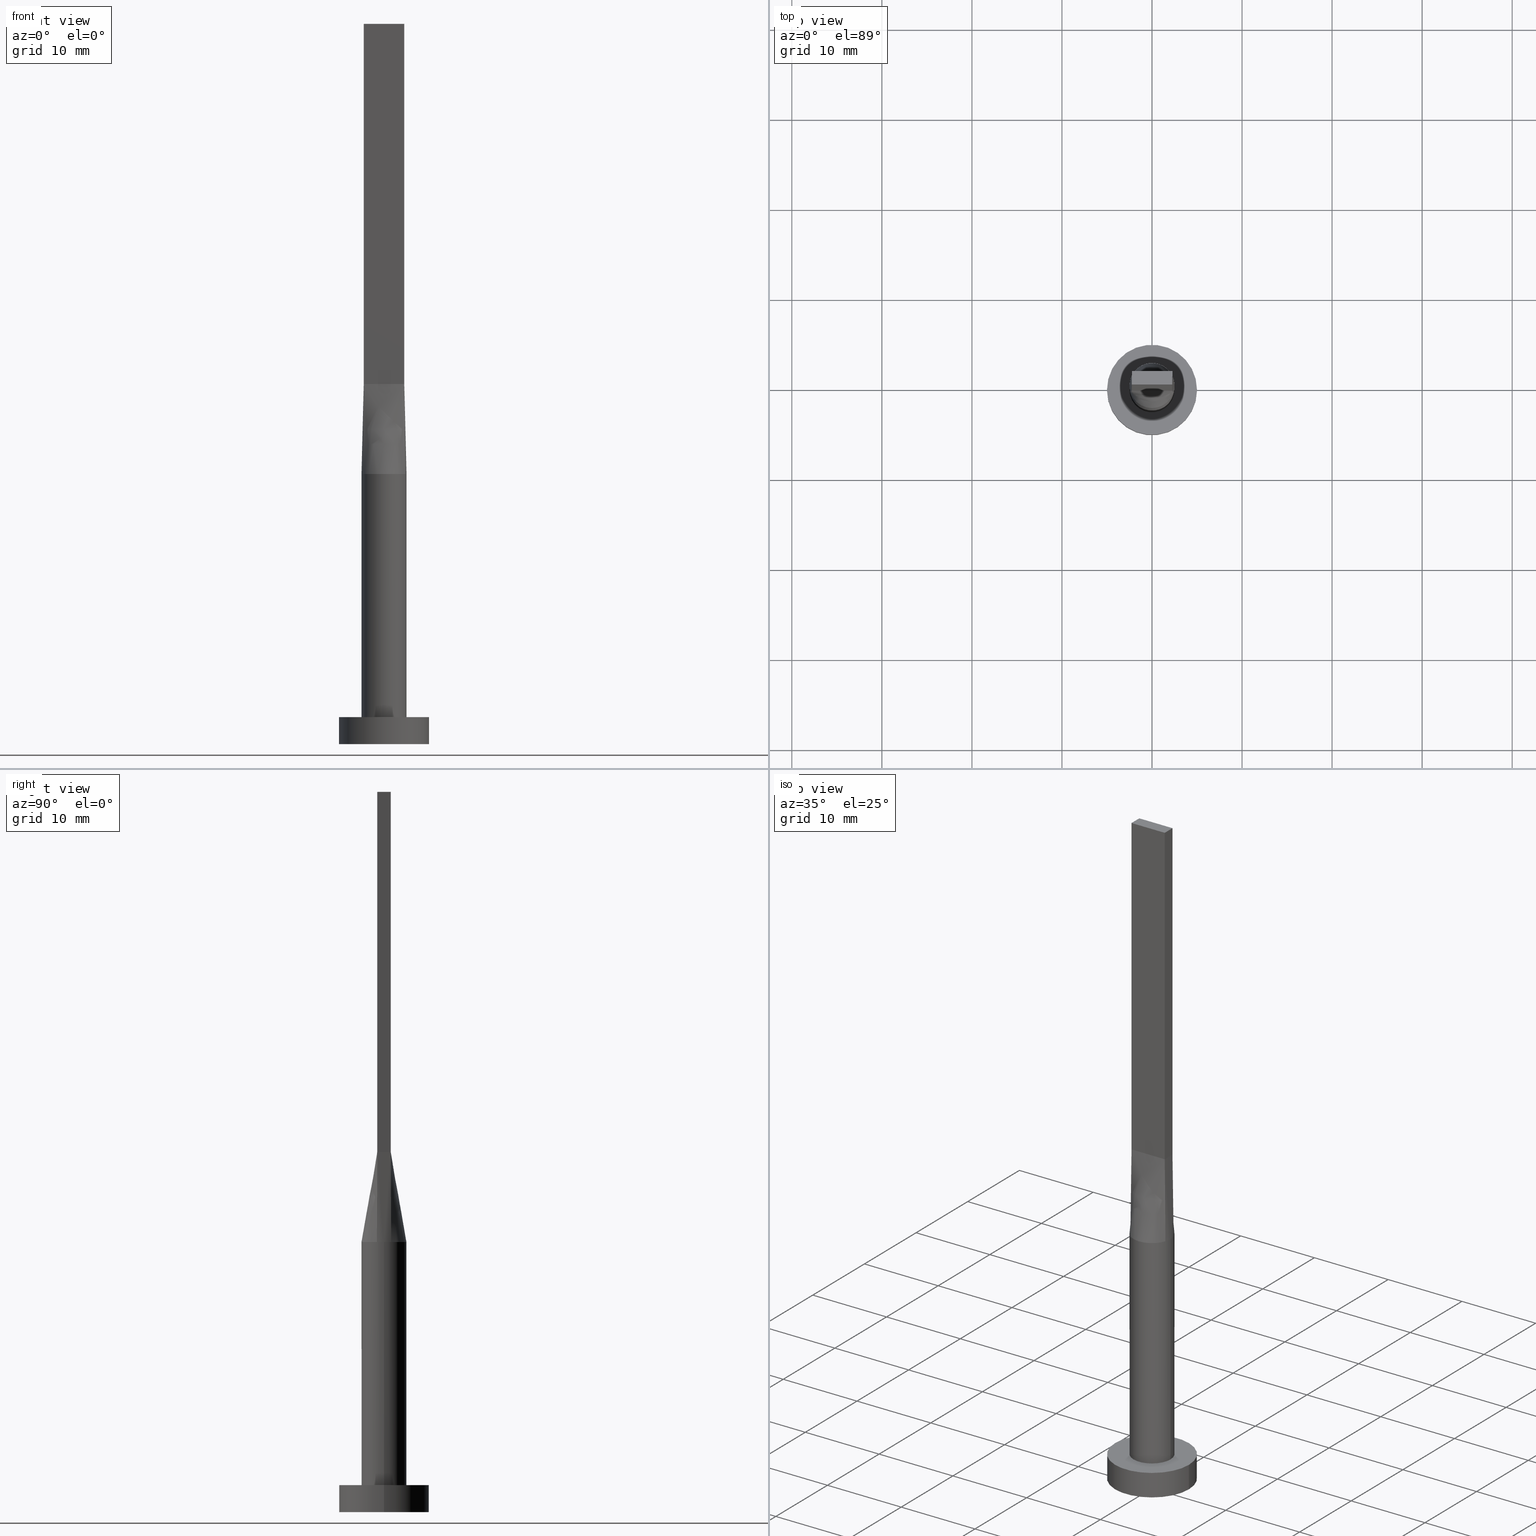
[diagram: canonical four-view strip — front | top / right | iso, engineering-drawing reading convention]
A machine part, canonical four-view strip (front | top / right | iso — engineering-drawing reading convention). The complete STEP part file that produces these views, byte-faithful:
ISO-10303-21;
HEADER;
FILE_DESCRIPTION (( 'STEP AP203' ),
    '1' );
FILE_NAME ('35fd.STEP',
    '2023-02-13T12:31:26',
    ( '' ),
    ( '' ),
    'SwSTEP 2.0',
    'SolidWorks 2019',
    '' );
FILE_SCHEMA (( 'CONFIG_CONTROL_DESIGN' ));
ENDSEC;

DATA;
#1 = CARTESIAN_POINT ( 'NONE',  ( 1.799471046981194977, 1.755719709239274007, 30.00000000000000355 ) ) ;
#2 = CC_DESIGN_DATE_AND_TIME_ASSIGNMENT ( #250, #252, ( #9 ) ) ;
#3 = CARTESIAN_POINT ( 'NONE',  ( 0.6000386972366480443, 2.444291348568451649, 29.99999999999999645 ) ) ;
#4 = CARTESIAN_POINT ( 'NONE',  ( -2.249999999999999556, 0.7500000000000002220, 80.00000000000000000 ) ) ;
#5 = ORIENTED_EDGE ( 'NONE', *, *, #502, .F. ) ;
#6 = AXIS2_PLACEMENT_3D ( 'NONE', #461, #67, #282 ) ;
#7 = CARTESIAN_POINT ( 'NONE',  ( -2.250000000000000000, -0.7499999999999995559, 80.00000000000000000 ) ) ;
#8 = DIRECTION ( 'NONE',  ( 0.000000000000000000, 0.000000000000000000, 1.000000000000000000 ) ) ;
#9 = PRODUCT_DEFINITION ( 'NEZN�M�', '', #287, #392 ) ;
#10 = DIRECTION ( 'NONE',  ( -1.000000000000000000, -2.891205793294678326E-16, 0.000000000000000000 ) ) ;
#11 = EDGE_LOOP ( 'NONE', ( #36, #361, #92, #124, #229, #525 ) ) ;
#12 = LINE ( 'NONE', #532, #496 ) ;
#13 = CARTESIAN_POINT ( 'NONE',  ( 0.000000000000000000, 0.000000000000000000, 30.00000000000000000 ) ) ;
#14 = B_SPLINE_SURFACE_WITH_KNOTS ( 'NONE', 3, 1, ( 
 ( #506, #117 ),
 ( #562, #165 ),
 ( #283, #162 ),
 ( #110, #293 ),
 ( #466, #286 ),
 ( #17, #20 ) ),
 .UNSPECIFIED., .F., .F., .F.,
 ( 4, 2, 4 ),
 ( 2, 2 ),
 ( 0.000000000000000000, 0.5000000000000000000, 1.000000000000000000 ),
 ( 0.000000000000000000, 1.000000000000000000 ),
 .UNSPECIFIED. ) ;
#15 = AXIS2_PLACEMENT_3D ( 'NONE', #172, #301, #216 ) ;
#16 = CARTESIAN_POINT ( 'NONE',  ( -2.249999999999999556, 0.7500000000000002220, 40.00000000000000000 ) ) ;
#17 = CARTESIAN_POINT ( 'NONE',  ( 2.371708245126284531, 0.7905694150420949917, 30.00000000000000000 ) ) ;
#18 = AXIS2_PLACEMENT_3D ( 'NONE', #330, #249, #553 ) ;
#19 = CARTESIAN_POINT ( 'NONE',  ( -5.000000000000000000, 0.000000000000000000, 3.000000000000000000 ) ) ;
#20 = CARTESIAN_POINT ( 'NONE',  ( 2.249999999999999556, 0.7500000000000002220, 40.00000000000000000 ) ) ;
#21 = CARTESIAN_POINT ( 'NONE',  ( 2.250000000000000000, -0.7499999999999997780, 80.00000000000000000 ) ) ;
#22 = CARTESIAN_POINT ( 'NONE',  ( 2.250000000000000000, -0.7499999999999997780, 40.00000000000000000 ) ) ;
#23 = AXIS2_PLACEMENT_3D ( 'NONE', #500, #331, #552 ) ;
#24 = CARTESIAN_POINT ( 'NONE',  ( -0.9375000000000113243, 0.7500000000000002220, 39.99999999999999289 ) ) ;
#25 = ORIENTED_EDGE ( 'NONE', *, *, #450, .F. ) ;
#26 = VECTOR ( 'NONE', #455, 1000.000000000000114 ) ;
#27 = APPROVAL_DATE_TIME ( #40, #48 ) ;
#28 = CARTESIAN_POINT ( 'NONE',  ( -0.7500000000000122125, 0.7500000000000002220, 39.99999999999999289 ) ) ;
#29 = COORDINATED_UNIVERSAL_TIME_OFFSET ( 1, 0, .AHEAD. ) ;
#30 = EDGE_CURVE ( 'NONE', #244, #565, #61, .T. ) ;
#31 = CARTESIAN_POINT ( 'NONE',  ( -0.1875000000000000833, -0.7499999999999995559, 40.00000000000000000 ) ) ;
#32 = ORIENTED_EDGE ( 'NONE', *, *, #79, .T. ) ;
#33 = DIRECTION ( 'NONE',  ( 0.000000000000000000, 0.000000000000000000, 1.000000000000000000 ) ) ;
#34 = CARTESIAN_POINT ( 'NONE',  ( -2.309208245126285419, -0.9780694150420946587, 30.00000000000000355 ) ) ;
#35 = LOCAL_TIME ( 13, 31, 26.00000000000000000, #29 ) ;
#36 = ORIENTED_EDGE ( 'NONE', *, *, #266, .F. ) ;
#37 = PERSON_AND_ORGANIZATION_ROLE ( 'creator' ) ;
#38 = CARTESIAN_POINT ( 'NONE',  ( 1.964343640889991249, -1.563766543189047953, 30.00000000000000711 ) ) ;
#39 = VERTEX_POINT ( 'NONE', #234 ) ;
#40 = DATE_AND_TIME ( #426, #160 ) ;
#41 = CARTESIAN_POINT ( 'NONE',  ( 0.000000000000000000, 0.000000000000000000, 80.00000000000000000 ) ) ;
#42 = ORIENTED_EDGE ( 'NONE', *, *, #108, .T. ) ;
#43 = EDGE_CURVE ( 'NONE', #311, #346, #59, .T. ) ;
#44 = CARTESIAN_POINT ( 'NONE',  ( -0.3003163416900532234, -2.499999999999999556, 30.00000000000000000 ) ) ;
#45 = EDGE_LOOP ( 'NONE', ( #133, #531, #490, #492 ) ) ;
#46 = VECTOR ( 'NONE', #185, 1000.000000000000000 ) ;
#47 = AXIS2_PLACEMENT_3D ( 'NONE', #462, #370, #68 ) ;
#48 = APPROVAL ( #295, 'NEUR�EN�' ) ;
#49 = PLANE ( 'NONE',  #431 ) ;
#50 = CARTESIAN_POINT ( 'NONE',  ( 0.9374999999999881206, 0.7500000000000003331, 39.99999999999999289 ) ) ;
#51 = CARTESIAN_POINT ( 'NONE',  ( -1.390086206340438890, 2.094828891646495883, 30.00000000000000355 ) ) ;
#52 = EDGE_CURVE ( 'NONE', #101, #437, #432, .T. ) ;
#53 = VERTEX_POINT ( 'NONE', #138 ) ;
#54 = CARTESIAN_POINT ( 'NONE',  ( 2.218933079238281980, 1.174882007252000315, 29.99999999999999289 ) ) ;
#55 = ORIENTED_EDGE ( 'NONE', *, *, #245, .F. ) ;
#56 = AXIS2_PLACEMENT_3D ( 'NONE', #515, #394, #345 ) ;
#57 = AXIS2_PLACEMENT_3D ( 'NONE', #13, #8, #269 ) ;
#58 = LINE ( 'NONE', #353, #129 ) ;
#59 = LINE ( 'NONE', #410, #114 ) ;
#60 = CARTESIAN_POINT ( 'NONE',  ( -2.500000000000000444, -1.570839010700814298E-16, 30.00000000000000000 ) ) ;
#61 = LINE ( 'NONE', #276, #248 ) ;
#62 = CARTESIAN_POINT ( 'NONE',  ( 0.000000000000000000, 0.000000000000000000, 3.000000000000000000 ) ) ;
#63 = CARTESIAN_POINT ( 'NONE',  ( -1.799471046981195199, 1.755719709239274229, 30.00000000000001066 ) ) ;
#64 = VECTOR ( 'NONE', #454, 1000.000000000000114 ) ;
#65 = CARTESIAN_POINT ( 'NONE',  ( 0.000000000000000000, 0.000000000000000000, 30.00000000000000000 ) ) ;
#66 = LINE ( 'NONE', #196, #26 ) ;
#67 = DIRECTION ( 'NONE',  ( 0.000000000000000000, 0.000000000000000000, 1.000000000000000000 ) ) ;
#68 = DIRECTION ( 'NONE',  ( -1.000000000000000000, 0.000000000000000000, 0.000000000000000000 ) ) ;
#69 = EDGE_CURVE ( 'NONE', #88, #53, #405, .T. ) ;
#70 = DIRECTION ( 'NONE',  ( -0.000000000000000000, -0.000000000000000000, -1.000000000000000000 ) ) ;
#71 = CARTESIAN_POINT ( 'NONE',  ( -2.371795432964766359, 0.7905989074952441964, 30.00000000000000000 ) ) ;
#72 = MANIFOLD_SOLID_BREP ( 'P�idat vysunut�m5', #203 ) ;
#73 = CARTESIAN_POINT ( 'NONE',  ( -2.249999999999999556, 0.7500000000000002220, 40.00000000000000000 ) ) ;
#74 = VECTOR ( 'NONE', #317, 1000.000000000000000 ) ;
#75 = CYLINDRICAL_SURFACE ( 'NONE', #47, 2.500000000000000000 ) ;
#76 = VECTOR ( 'NONE', #464, 1000.000000000000000 ) ;
#77 = SHAPE_DEFINITION_REPRESENTATION ( #343, #451 ) ;
#78 = CARTESIAN_POINT ( 'NONE',  ( -0.9374999999999997780, -0.7499999999999995559, 40.00000000000000000 ) ) ;
#79 = EDGE_CURVE ( 'NONE', #173, #573, #442, .T. ) ;
#80 = CARTESIAN_POINT ( 'NONE',  ( 0.9374999999999998890, -0.7499999999999996669, 39.99999999999999289 ) ) ;
#81 = ORIENTED_EDGE ( 'NONE', *, *, #355, .T. ) ;
#82 = PERSON_AND_ORGANIZATION ( #143, #139 ) ;
#83 = CARTESIAN_POINT ( 'NONE',  ( -1.390086206340439334, -2.094828891646495883, 30.00000000000000000 ) ) ;
#84 = AXIS2_PLACEMENT_3D ( 'NONE', #145, #398, #443 ) ;
#85 = EDGE_LOOP ( 'NONE', ( #127, #576, #135, #155, #518 ) ) ;
#86 =( NAMED_UNIT ( * ) PLANE_ANGLE_UNIT ( ) SI_UNIT ( $, .RADIAN. ) );
#87 = CARTESIAN_POINT ( 'NONE',  ( 0.3749999999999996669, -0.7499999999999995559, 39.99999999999999289 ) ) ;
#88 = VERTEX_POINT ( 'NONE', #232 ) ;
#89 = ADVANCED_FACE ( 'NONE', ( #363 ), #153, .T. ) ;
#90 = CALENDAR_DATE ( 2023, 13, 2 ) ;
#91 = CARTESIAN_POINT ( 'NONE',  ( 2.250000000000000000, -0.7499999999999997780, 40.00000000000000000 ) ) ;
#92 = ORIENTED_EDGE ( 'NONE', *, *, #156, .T. ) ;
#93 = CARTESIAN_POINT ( 'NONE',  ( -2.371795432964766359, 0.7905989074952441964, 30.00000000000000000 ) ) ;
#94 = ORIENTED_EDGE ( 'NONE', *, *, #380, .F. ) ;
#95 = CIRCLE ( 'NONE', #413, 2.500000000000000000 ) ;
#96 = FACE_OUTER_BOUND ( 'NONE', #378, .T. ) ;
#97 = ORIENTED_EDGE ( 'NONE', *, *, #579, .T. ) ;
#98 = CARTESIAN_POINT ( 'NONE',  ( 0.000000000000000000, 0.000000000000000000, 0.000000000000000000 ) ) ;
#99 = CARTESIAN_POINT ( 'NONE',  ( 2.249999999999999556, 0.7500000000000002220, 40.00000000000000000 ) ) ;
#100 = CARTESIAN_POINT ( 'NONE',  ( 1.964343640889990361, 1.563766543189047287, 29.99999999999998934 ) ) ;
#101 = VERTEX_POINT ( 'NONE', #71 ) ;
#102 = APPROVAL_PERSON_ORGANIZATION ( #568, #499, #174 ) ;
#103 = AXIS2_PLACEMENT_3D ( 'NONE', #504, #377, #512 ) ;
#104 = DIRECTION ( 'NONE',  ( 4.818676322157797621E-17, 1.000000000000000000, -0.000000000000000000 ) ) ;
#105 = ORIENTED_EDGE ( 'NONE', *, *, #266, .T. ) ;
#106 = CARTESIAN_POINT ( 'NONE',  ( 2.250000000000000000, -0.7499999999999997780, 80.00000000000000000 ) ) ;
#107 = CARTESIAN_POINT ( 'NONE',  ( -2.249999999999999556, 0.7500000000000002220, 80.00000000000000000 ) ) ;
#108 = EDGE_CURVE ( 'NONE', #101, #352, #415, .T. ) ;
#109 = CYLINDRICAL_SURFACE ( 'NONE', #477, 5.000000000000000000 ) ;
#110 = CARTESIAN_POINT ( 'NONE',  ( 2.499999999999999112, 0.2704627669472988161, 30.00000000000000000 ) ) ;
#111 = CC_DESIGN_APPROVAL ( #332, ( #179 ) ) ;
#112 = DIRECTION ( 'NONE',  ( -0.000000000000000000, -0.000000000000000000, -1.000000000000000000 ) ) ;
#113 = ADVANCED_FACE ( 'NONE', ( #324 ), #75, .T. ) ;
#114 = VECTOR ( 'NONE', #539, 1000.000000000000000 ) ;
#115 = CARTESIAN_POINT ( 'NONE',  ( -0.1875000000000138778, 0.7500000000000003331, 39.99999999999999289 ) ) ;
#116 = CARTESIAN_POINT ( 'NONE',  ( 2.249999999999999556, 0.7500000000000002220, 80.00000000000000000 ) ) ;
#117 = CARTESIAN_POINT ( 'NONE',  ( 2.250000000000000000, -0.7499999999999997780, 40.00000000000000000 ) ) ;
#118 = ORIENTED_EDGE ( 'NONE', *, *, #391, .T. ) ;
#119 = FACE_OUTER_BOUND ( 'NONE', #182, .T. ) ;
#120 = APPROVAL_STATUS ( 'not_yet_approved' ) ;
#121 = CYLINDRICAL_SURFACE ( 'NONE', #15, 5.000000000000000000 ) ;
#122 = PERSON_AND_ORGANIZATION ( #143, #139 ) ;
#123 = CARTESIAN_POINT ( 'NONE',  ( 2.371708245126284531, -0.7905694150420953248, 30.00000000000000000 ) ) ;
#124 = ORIENTED_EDGE ( 'NONE', *, *, #206, .F. ) ;
#125 = CALENDAR_DATE ( 2023, 13, 2 ) ;
#126 = CARTESIAN_POINT ( 'NONE',  ( 1.799471046981195199, -1.755719709239274229, 30.00000000000000711 ) ) ;
#127 = ORIENTED_EDGE ( 'NONE', *, *, #52, .T. ) ;
#128 = CARTESIAN_POINT ( 'NONE',  ( -1.145194483530141305, -2.241235424885160477, 30.00000000000000355 ) ) ;
#129 = VECTOR ( 'NONE', #275, 1000.000000000000000 ) ;
#130 = ORIENTED_EDGE ( 'NONE', *, *, #156, .F. ) ;
#131 = APPROVAL_ROLE ( '' ) ;
#132 = CARTESIAN_POINT ( 'NONE',  ( -1.499999999999999556, -0.7499999999999995559, 39.99999999999999289 ) ) ;
#133 = ORIENTED_EDGE ( 'NONE', *, *, #474, .T. ) ;
#134 = CARTESIAN_POINT ( 'NONE',  ( 1.145194483530141749, 2.241235424885160921, 30.00000000000000355 ) ) ;
#135 = ORIENTED_EDGE ( 'NONE', *, *, #30, .F. ) ;
#136 = EDGE_CURVE ( 'NONE', #446, #311, #149, .T. ) ;
#137 = CARTESIAN_POINT ( 'NONE',  ( -1.964343640889990805, 1.563766543189048175, 30.00000000000000000 ) ) ;
#138 = CARTESIAN_POINT ( 'NONE',  ( -2.250000000000000000, -0.7499999999999995559, 80.00000000000000000 ) ) ;
#139 = ORGANIZATION ( 'NEUR�EN�', 'NEUR�EN�', '' ) ;
#140 = LINE ( 'NONE', #537, #488 ) ;
#141 = CARTESIAN_POINT ( 'NONE',  ( 2.309208245126284975, 0.9780694150420948807, 29.99999999999999645 ) ) ;
#142 = CARTESIAN_POINT ( 'NONE',  ( -2.250000000000000000, -0.7499999999999995559, 80.00000000000000000 ) ) ;
#143 = PERSON ( 'NEUR�EN�', 'NEUR�EN�', 'NEUR�EN�', ('NEUR�EN�'), ('NEUR�EN�'), ('NEUR�EN�') ) ;
#144 = CARTESIAN_POINT ( 'NONE',  ( 1.964343640889990361, 1.563766543189047287, 29.99999999999998934 ) ) ;
#145 = CARTESIAN_POINT ( 'NONE',  ( 0.000000000000000000, 0.000000000000000000, 0.000000000000000000 ) ) ;
#146 = ADVANCED_FACE ( 'NONE', ( #119 ), #14, .T. ) ;
#147 = ORIENTED_EDGE ( 'NONE', *, *, #399, .F. ) ;
#148 = CIRCLE ( 'NONE', #23, 2.500000000000000000 ) ;
#149 = CIRCLE ( 'NONE', #103, 2.500000000000000000 ) ;
#150 = DIRECTION ( 'NONE',  ( -2.891205793294678326E-16, 1.000000000000000000, 0.000000000000000000 ) ) ;
#151 = CARTESIAN_POINT ( 'NONE',  ( 1.312499999999990230, 0.7500000000000002220, 39.99999999999999289 ) ) ;
#152 = CARTESIAN_POINT ( 'NONE',  ( -2.371775648085652222, -0.7905922034696525325, 30.00000000000000000 ) ) ;
#153 = B_SPLINE_SURFACE_WITH_KNOTS ( 'NONE', 3, 1, ( 
 ( #186, #358 ),
 ( #141, #535 ),
 ( #407, #193 ),
 ( #144, #548 ),
 ( #501, #151 ),
 ( #322, #50 ),
 ( #225, #316 ),
 ( #3, #184 ),
 ( #274, #291 ),
 ( #418, #115 ),
 ( #207, #420 ),
 ( #237, #28 ),
 ( #425, #24 ),
 ( #63, #242 ),
 ( #509, #381 ),
 ( #243, #560 ),
 ( #555, #289 ),
 ( #333, #373 ) ),
 .UNSPECIFIED., .F., .F., .F.,
 ( 4, 2, 2, 2, 2, 2, 2, 2, 4 ),
 ( 2, 2 ),
 ( 0.000000000000000000, 0.1250000000000000000, 0.2500000000000000000, 0.3750000000000000000, 0.5000000000000000000, 0.6250000000000000000, 0.7500000000000000000, 0.8750000000000000000, 1.000000000000000000 ),
 ( 0.000000000000000000, 1.000000000000000000 ),
 .UNSPECIFIED. ) ;
#154 = FACE_OUTER_BOUND ( 'NONE', #484, .T. ) ;
#155 = ORIENTED_EDGE ( 'NONE', *, *, #519, .F. ) ;
#156 = EDGE_CURVE ( 'NONE', #346, #39, #423, .T. ) ;
#157 = FACE_OUTER_BOUND ( 'NONE', #449, .T. ) ;
#158 = PLANE ( 'NONE',  #538 ) ;
#159 = CC_DESIGN_DATE_AND_TIME_ASSIGNMENT ( #338, #166, ( #179 ) ) ;
#160 = LOCAL_TIME ( 13, 31, 26.00000000000000000, #303 ) ;
#161 = DIRECTION ( 'NONE',  ( -0.000000000000000000, -0.000000000000000000, -1.000000000000000000 ) ) ;
#162 = CARTESIAN_POINT ( 'NONE',  ( 2.249999999999999556, -0.2500000000000000000, 39.99999999999999289 ) ) ;
#163 = AXIS2_PLACEMENT_3D ( 'NONE', #107, #199, #412 ) ;
#164 = CARTESIAN_POINT ( 'NONE',  ( -2.371708245126284975, -0.7905694150420946587, 30.00000000000000000 ) ) ;
#165 = CARTESIAN_POINT ( 'NONE',  ( 2.250000000000000000, -0.4999999999999998890, 39.99999999999999289 ) ) ;
#166 = DATE_TIME_ROLE ( 'classification_date' ) ;
#167 = LINE ( 'NONE', #459, #76 ) ;
#168 = VECTOR ( 'NONE', #161, 1000.000000000000000 ) ;
#169 = CARTESIAN_POINT ( 'NONE',  ( 1.499999999999999556, -0.7499999999999997780, 39.99999999999999289 ) ) ;
#170 = ORIENTED_EDGE ( 'NONE', *, *, #380, .T. ) ;
#171 = PERSON_AND_ORGANIZATION_ROLE ( 'design_supplier' ) ;
#172 = CARTESIAN_POINT ( 'NONE',  ( 0.000000000000000000, 0.000000000000000000, 3.000000000000000000 ) ) ;
#173 = VERTEX_POINT ( 'NONE', #22 ) ;
#174 = APPROVAL_ROLE ( '' ) ;
#175 = CARTESIAN_POINT ( 'NONE',  ( -5.000000000000000000, 0.000000000000000000, 0.000000000000000000 ) ) ;
#176 = ORIENTED_EDGE ( 'NONE', *, *, #566, .T. ) ;
#177 = PERSON_AND_ORGANIZATION ( #143, #139 ) ;
#178 = CARTESIAN_POINT ( 'NONE',  ( 2.309208245126284087, -0.9780694150420953248, 29.99999999999999289 ) ) ;
#179 = SECURITY_CLASSIFICATION ( '', '', #208 ) ;
#180 = ORIENTED_EDGE ( 'NONE', *, *, #69, .F. ) ;
#181 = CARTESIAN_POINT ( 'NONE',  ( -2.218933079238281980, -1.174882007251999427, 29.99999999999999645 ) ) ;
#182 = EDGE_LOOP ( 'NONE', ( #581, #105, #313, #439, #350 ) ) ;
#183 = CARTESIAN_POINT ( 'NONE',  ( -0.3003163416900526128, 2.499999999999999112, 29.99999999999999645 ) ) ;
#184 = CARTESIAN_POINT ( 'NONE',  ( 0.3749999999999862332, 0.7500000000000003331, 39.99999999999999289 ) ) ;
#185 = DIRECTION ( 'NONE',  ( -0.000000000000000000, -0.000000000000000000, -1.000000000000000000 ) ) ;
#186 = CARTESIAN_POINT ( 'NONE',  ( 2.371708245126284531, 0.7905694150420949917, 30.00000000000000000 ) ) ;
#187 = CIRCLE ( 'NONE', #567, 2.500000000000000000 ) ;
#188 = CARTESIAN_POINT ( 'NONE',  ( -2.309208245126284975, 0.9780694150420951027, 30.00000000000000355 ) ) ;
#189 = ORIENTED_EDGE ( 'NONE', *, *, #566, .F. ) ;
#190 = CARTESIAN_POINT ( 'NONE',  ( 2.249999999999999556, 0.7500000000000002220, 80.00000000000000000 ) ) ;
#191 = EDGE_LOOP ( 'NONE', ( #189, #265, #81, #5 ) ) ;
#192 = CARTESIAN_POINT ( 'NONE',  ( -2.371708245126284531, 0.7905694150420949917, 30.00000000000000000 ) ) ;
#193 = CARTESIAN_POINT ( 'NONE',  ( 1.874999999999995115, 0.7500000000000002220, 39.99999999999999289 ) ) ;
#194 = VECTOR ( 'NONE', #150, 1000.000000000000000 ) ;
#195 = LINE ( 'NONE', #367, #64 ) ;
#196 = CARTESIAN_POINT ( 'NONE',  ( 2.310854122563142266, 0.7702847075210476069, 35.00000000000000000 ) ) ;
#197 = EDGE_CURVE ( 'NONE', #430, #573, #66, .T. ) ;
#198 = CARTESIAN_POINT ( 'NONE',  ( -2.250000000000000000, -0.7499999999999995559, 40.00000000000000000 ) ) ;
#199 = DIRECTION ( 'NONE',  ( 1.000000000000000000, -2.891205793294678819E-16, 0.000000000000000000 ) ) ;
#200 = DIRECTION ( 'NONE',  ( 0.000000000000000000, 0.000000000000000000, 1.000000000000000000 ) ) ;
#201 = PLANE ( 'NONE',  #163 ) ;
#202 = DIRECTION ( 'NONE',  ( -2.891205793294678819E-16, -1.000000000000000000, 0.000000000000000000 ) ) ;
#203 = CLOSED_SHELL ( 'NONE', ( #113, #314, #549, #230, #559, #468, #292, #146, #494, #89, #371, #214, #416, #348, #309 ) ) ;
#204 = DIRECTION ( 'NONE',  ( 0.01216982305197525371, -0.004056607683991667393, 0.9999177162851859979 ) ) ;
#205 = PERSON_AND_ORGANIZATION_ROLE ( 'classification_officer' ) ;
#206 = EDGE_CURVE ( 'NONE', #437, #39, #167, .T. ) ;
#207 = CARTESIAN_POINT ( 'NONE',  ( -0.6000386972366482663, 2.444291348568452094, 30.00000000000000000 ) ) ;
#208 = SECURITY_CLASSIFICATION_LEVEL ( 'unclassified' ) ;
#209 = CARTESIAN_POINT ( 'NONE',  ( 2.218933079238280204, -1.174882007251999871, 29.99999999999998934 ) ) ;
#210 = EDGE_LOOP ( 'NONE', ( #428, #557, #434, #487 ) ) ;
#211 = CIRCLE ( 'NONE', #337, 5.000000000000000000 ) ;
#212 = CARTESIAN_POINT ( 'NONE',  ( 0.000000000000000000, 0.000000000000000000, 30.00000000000000000 ) ) ;
#213 = EDGE_LOOP ( 'NONE', ( #498, #55, #400, #170 ) ) ;
#214 = ADVANCED_FACE ( 'NONE', ( #335 ), #201, .F. ) ;
#215 =( NAMED_UNIT ( * ) SI_UNIT ( $, .STERADIAN. ) SOLID_ANGLE_UNIT ( ) );
#216 = DIRECTION ( 'NONE',  ( -1.000000000000000000, 0.000000000000000000, 0.000000000000000000 ) ) ;
#217 = VERTEX_POINT ( 'NONE', #368 ) ;
#218 = APPROVAL_DATE_TIME ( #478, #499 ) ;
#219 = DIRECTION ( 'NONE',  ( 1.000000000000000000, 0.000000000000000000, 0.000000000000000000 ) ) ;
#220 = ORIENTED_EDGE ( 'NONE', *, *, #519, .T. ) ;
#221 = CARTESIAN_POINT ( 'NONE',  ( -2.062499999999999556, -0.7499999999999995559, 40.00000000000000000 ) ) ;
#222 = LOCAL_TIME ( 13, 31, 26.00000000000000000, #306 ) ;
#223 = ORIENTED_EDGE ( 'NONE', *, *, #450, .T. ) ;
#224 = CARTESIAN_POINT ( 'NONE',  ( 2.500000000000000000, 3.061616997868383141E-16, 3.000000000000000000 ) ) ;
#225 = CARTESIAN_POINT ( 'NONE',  ( 1.145194483530141749, 2.241235424885160921, 30.00000000000000355 ) ) ;
#226 = CARTESIAN_POINT ( 'NONE',  ( -2.218933079238281536, 1.174882007251999871, 29.99999999999999645 ) ) ;
#227 = CARTESIAN_POINT ( 'NONE',  ( -2.249999999999999556, 0.7500000000000002220, 80.00000000000000000 ) ) ;
#228 = CARTESIAN_POINT ( 'NONE',  ( 2.371772892450305648, 0.7905912578404317159, 30.00000000000000000 ) ) ;
#229 = ORIENTED_EDGE ( 'NONE', *, *, #52, .F. ) ;
#230 = ADVANCED_FACE ( 'NONE', ( #551, #154 ), #158, .T. ) ;
#231 = CARTESIAN_POINT ( 'NONE',  ( 2.371772892450305648, 0.7905912578404317159, 30.00000000000000000 ) ) ;
#232 = CARTESIAN_POINT ( 'NONE',  ( -2.249999999999999556, 0.7500000000000002220, 80.00000000000000000 ) ) ;
#233 = CARTESIAN_POINT ( 'NONE',  ( 2.371798206859841329, -0.7905998626979697796, 30.00000000000000000 ) ) ;
#234 = CARTESIAN_POINT ( 'NONE',  ( -2.500000000000000000, 0.000000000000000000, 3.000000000000000000 ) ) ;
#235 = LINE ( 'NONE', #106, #194 ) ;
#236 = EDGE_CURVE ( 'NONE', #565, #446, #187, .T. ) ;
#237 = CARTESIAN_POINT ( 'NONE',  ( -1.145194483530141527, 2.241235424885160921, 29.99999999999999645 ) ) ;
#238 = CARTESIAN_POINT ( 'NONE',  ( -2.249999999999999556, 0.5000000000000002220, 39.99999999999999289 ) ) ;
#239 = CARTESIAN_POINT ( 'NONE',  ( -2.310854122563142266, 0.7702847075210473848, 35.00000000000000000 ) ) ;
#240 = APPLICATION_CONTEXT ( 'configuration controlled 3d designs of mechanical parts and assemblies' ) ;
#241 = CARTESIAN_POINT ( 'NONE',  ( 0.000000000000000000, 0.000000000000000000, 3.000000000000000000 ) ) ;
#242 = CARTESIAN_POINT ( 'NONE',  ( -1.312500000000008882, 0.7500000000000002220, 39.99999999999999289 ) ) ;
#243 = CARTESIAN_POINT ( 'NONE',  ( -2.218933079238281536, 1.174882007251999871, 29.99999999999999645 ) ) ;
#244 = VERTEX_POINT ( 'NONE', #427 ) ;
#245 = EDGE_CURVE ( 'NONE', #217, #397, #211, .T. ) ;
#246 = VECTOR ( 'NONE', #463, 1000.000000000000000 ) ;
#247 = CARTESIAN_POINT ( 'NONE',  ( -2.250000000000000000, -0.7499999999999995559, 40.00000000000000000 ) ) ;
#248 = VECTOR ( 'NONE', #320, 1000.000000000000114 ) ;
#249 = DIRECTION ( 'NONE',  ( 0.000000000000000000, 0.000000000000000000, 1.000000000000000000 ) ) ;
#250 = DATE_AND_TIME ( #297, #347 ) ;
#251 = CARTESIAN_POINT ( 'NONE',  ( -0.7499999999999997780, -0.7499999999999995559, 40.00000000000000000 ) ) ;
#252 = DATE_TIME_ROLE ( 'creation_date' ) ;
#253 = DIRECTION ( 'NONE',  ( 1.000000000000000000, 0.000000000000000000, -0.000000000000000000 ) ) ;
#254 = ORIENTED_EDGE ( 'NONE', *, *, #206, .T. ) ;
#255 = VECTOR ( 'NONE', #445, 1000.000000000000000 ) ;
#256 = CARTESIAN_POINT ( 'NONE',  ( -1.964343640889991249, -1.563766543189046843, 29.99999999999999289 ) ) ;
#257 = ORIENTED_EDGE ( 'NONE', *, *, #329, .F. ) ;
#258 = UNCERTAINTY_MEASURE_WITH_UNIT (LENGTH_MEASURE( 1.000000000000000082E-05 ), #419, 'distance_accuracy_value', 'NONE');
#259 = DIRECTION ( 'NONE',  ( 1.000000000000000000, 0.000000000000000000, 0.000000000000000000 ) ) ;
#260 = CARTESIAN_POINT ( 'NONE',  ( 0.000000000000000000, 0.000000000000000000, 30.00000000000000000 ) ) ;
#261 = APPLICATION_CONTEXT ( 'configuration controlled 3d designs of mechanical parts and assemblies' ) ;
#262 = ORIENTED_EDGE ( 'NONE', *, *, #457, .T. ) ;
#263 = PERSON_AND_ORGANIZATION ( #143, #139 ) ;
#264 = CARTESIAN_POINT ( 'NONE',  ( -0.3749999999999999445, -0.7499999999999995559, 40.00000000000000000 ) ) ;
#265 = ORIENTED_EDGE ( 'NONE', *, *, #336, .T. ) ;
#266 = EDGE_CURVE ( 'NONE', #311, #430, #507, .T. ) ;
#267 = CARTESIAN_POINT ( 'NONE',  ( 0.3003163416900527238, 2.499999999999999556, 30.00000000000000355 ) ) ;
#268 = AXIS2_PLACEMENT_3D ( 'NONE', #241, #200, #372 ) ;
#269 = DIRECTION ( 'NONE',  ( 1.000000000000000000, 0.000000000000000000, 0.000000000000000000 ) ) ;
#270 = LINE ( 'NONE', #401, #74 ) ;
#271 = EDGE_LOOP ( 'NONE', ( #97, #473, #118, #481 ) ) ;
#272 = DIRECTION ( 'NONE',  ( 2.891205793294678326E-16, -1.000000000000000000, 0.000000000000000000 ) ) ;
#273 = B_SPLINE_CURVE_WITH_KNOTS ( 'NONE', 3,
 ( #228, #534, #54, #100, #1, #541, #134, #452, #267, #183, #310, #319, #51, #497, #137, #226, #188, #93 ),
 .UNSPECIFIED., .F., .F.,
 ( 4, 2, 2, 2, 2, 2, 2, 2, 4 ),
 ( 0.000000000000000000, 0.1250000000000000000, 0.2500000000000000000, 0.3750000000000000000, 0.5000000000000000000, 0.6250000000000000000, 0.7500000000000000000, 0.8750000000000000000, 1.000000000000000000 ),
 .UNSPECIFIED. ) ;
#274 = CARTESIAN_POINT ( 'NONE',  ( 0.3003163416900527238, 2.499999999999999556, 30.00000000000000355 ) ) ;
#275 = DIRECTION ( 'NONE',  ( -1.000000000000000000, -0.000000000000000000, -0.000000000000000000 ) ) ;
#276 = CARTESIAN_POINT ( 'NONE',  ( -2.310854122563142266, -0.7702847075210469407, 35.00000000000000000 ) ) ;
#277 = APPROVAL_PERSON_ORGANIZATION ( #122, #48, #520 ) ;
#278 = AXIS2_PLACEMENT_3D ( 'NONE', #341, #33, #259 ) ;
#279 = DIRECTION ( 'NONE',  ( -1.000000000000000000, 4.818676322157797621E-17, 0.000000000000000000 ) ) ;
#280 = ORIENTED_EDGE ( 'NONE', *, *, #579, .F. ) ;
#281 = EDGE_CURVE ( 'NONE', #437, #565, #95, .T. ) ;
#282 = DIRECTION ( 'NONE',  ( 1.000000000000000000, 0.000000000000000000, -0.000000000000000000 ) ) ;
#283 = CARTESIAN_POINT ( 'NONE',  ( 2.499999999999999556, -0.2704627669472993157, 30.00000000000000000 ) ) ;
#284 = CC_DESIGN_PERSON_AND_ORGANIZATION_ASSIGNMENT ( #177, #571, ( #9 ) ) ;
#285 = CARTESIAN_POINT ( 'NONE',  ( -2.500000000000000888, 0.2704627669472991491, 30.00000000000000000 ) ) ;
#286 = CARTESIAN_POINT ( 'NONE',  ( 2.249999999999999556, 0.5000000000000000000, 39.99999999999999289 ) ) ;
#287 = PRODUCT_DEFINITION_FORMATION_WITH_SPECIFIED_SOURCE ( 'LIBOVOLN�', '', #510, .NOT_KNOWN. ) ;
#288 = PLANE ( 'NONE',  #6 ) ;
#289 = CARTESIAN_POINT ( 'NONE',  ( -2.062500000000001776, 0.7500000000000002220, 39.99999999999999289 ) ) ;
#290 = DIRECTION ( 'NONE',  ( -0.000000000000000000, -0.000000000000000000, -1.000000000000000000 ) ) ;
#291 = CARTESIAN_POINT ( 'NONE',  ( 0.1874999999999860112, 0.7500000000000003331, 40.00000000000000000 ) ) ;
#292 = ADVANCED_FACE ( 'NONE', ( #517 ), #521, .T. ) ;
#293 = CARTESIAN_POINT ( 'NONE',  ( 2.249999999999999556, 0.2499999999999999445, 39.99999999999999289 ) ) ;
#294 = CC_DESIGN_SECURITY_CLASSIFICATION ( #179, ( #287 ) ) ;
#295 = APPROVAL_STATUS ( 'not_yet_approved' ) ;
#296 = DIRECTION ( 'NONE',  ( 1.000000000000000000, 0.000000000000000000, 0.000000000000000000 ) ) ;
#297 = CALENDAR_DATE ( 2023, 13, 2 ) ;
#298 = PLANE ( 'NONE',  #374 ) ;
#299 = ORIENTED_EDGE ( 'NONE', *, *, #245, .T. ) ;
#300 = PERSON_AND_ORGANIZATION ( #143, #139 ) ;
#301 = DIRECTION ( 'NONE',  ( -0.000000000000000000, -0.000000000000000000, -1.000000000000000000 ) ) ;
#302 = ORIENTED_EDGE ( 'NONE', *, *, #399, .T. ) ;
#303 = COORDINATED_UNIVERSAL_TIME_OFFSET ( 1, 0, .AHEAD. ) ;
#304 = DIRECTION ( 'NONE',  ( 0.000000000000000000, 0.000000000000000000, 1.000000000000000000 ) ) ;
#305 = ORIENTED_EDGE ( 'NONE', *, *, #329, .T. ) ;
#306 = COORDINATED_UNIVERSAL_TIME_OFFSET ( 1, 0, .AHEAD. ) ;
#307 = CARTESIAN_POINT ( 'NONE',  ( 1.874999999999999556, -0.7499999999999997780, 39.99999999999999289 ) ) ;
#308 = ORIENTED_EDGE ( 'NONE', *, *, #365, .T. ) ;
#309 = ADVANCED_FACE ( 'NONE', ( #580 ), #298, .T. ) ;
#310 = CARTESIAN_POINT ( 'NONE',  ( -0.6000386972366482663, 2.444291348568452094, 30.00000000000000000 ) ) ;
#311 = VERTEX_POINT ( 'NONE', #386 ) ;
#312 = PLANE ( 'NONE',  #448 ) ;
#313 = ORIENTED_EDGE ( 'NONE', *, *, #197, .T. ) ;
#314 = ADVANCED_FACE ( 'NONE', ( #569 ), #121, .T. ) ;
#315 = DIRECTION ( 'NONE',  ( 0.000000000000000000, -1.000000000000000000, 0.000000000000000000 ) ) ;
#316 = CARTESIAN_POINT ( 'NONE',  ( 0.7499999999999873435, 0.7500000000000003331, 39.99999999999999289 ) ) ;
#317 = DIRECTION ( 'NONE',  ( 1.000000000000000000, -4.818676322157797621E-17, 0.000000000000000000 ) ) ;
#318 = VERTEX_POINT ( 'NONE', #175 ) ;
#319 = CARTESIAN_POINT ( 'NONE',  ( -1.145194483530141527, 2.241235424885160921, 29.99999999999999645 ) ) ;
#320 = DIRECTION ( 'NONE',  ( -0.01216982305197525371, -0.004056607683991732445, -0.9999177162851859979 ) ) ;
#321 = CYLINDRICAL_SURFACE ( 'NONE', #527, 2.500000000000000000 ) ;
#322 = CARTESIAN_POINT ( 'NONE',  ( 1.390086206340439112, 2.094828891646494995, 30.00000000000000355 ) ) ;
#323 = CARTESIAN_POINT ( 'NONE',  ( 2.250000000000000000, -0.7499999999999997780, 80.00000000000000000 ) ) ;
#324 = FACE_OUTER_BOUND ( 'NONE', #11, .T. ) ;
#325 = VERTEX_POINT ( 'NONE', #406 ) ;
#326 = DIRECTION ( 'NONE',  ( -1.000000000000000000, 0.000000000000000000, 0.000000000000000000 ) ) ;
#327 = CARTESIAN_POINT ( 'NONE',  ( 0.000000000000000000, 0.000000000000000000, 3.000000000000000000 ) ) ;
#328 = CARTESIAN_POINT ( 'NONE',  ( -2.249999999999999556, -0.2499999999999995282, 39.99999999999999289 ) ) ;
#329 = EDGE_CURVE ( 'NONE', #573, #352, #58, .T. ) ;
#330 = CARTESIAN_POINT ( 'NONE',  ( 0.000000000000000000, 0.000000000000000000, 3.000000000000000000 ) ) ;
#331 = DIRECTION ( 'NONE',  ( 0.000000000000000000, 0.000000000000000000, 1.000000000000000000 ) ) ;
#332 = APPROVAL ( #393, 'NEUR�EN�' ) ;
#333 = CARTESIAN_POINT ( 'NONE',  ( -2.371708245126284531, 0.7905694150420944366, 30.00000000000000000 ) ) ;
#334 = DATE_AND_TIME ( #90, #546 ) ;
#335 = FACE_OUTER_BOUND ( 'NONE', #402, .T. ) ;
#336 = EDGE_CURVE ( 'NONE', #397, #325, #140, .T. ) ;
#337 = AXIS2_PLACEMENT_3D ( 'NONE', #469, #572, #472 ) ;
#338 = DATE_AND_TIME ( #379, #222 ) ;
#339 = CARTESIAN_POINT ( 'NONE',  ( -2.371708245126284975, -0.7905694150420944366, 30.00000000000000000 ) ) ;
#340 = ORIENTED_EDGE ( 'NONE', *, *, #236, .F. ) ;
#341 = CARTESIAN_POINT ( 'NONE',  ( 0.000000000000000000, 0.000000000000000000, 0.000000000000000000 ) ) ;
#342 = CARTESIAN_POINT ( 'NONE',  ( 0.3003163416900518912, -2.500000000000001332, 30.00000000000000355 ) ) ;
#343 = PRODUCT_DEFINITION_SHAPE ( 'NONE', 'NONE',  #9 ) ;
#344 = EDGE_LOOP ( 'NONE', ( #305, #147, #280, #223 ) ) ;
#345 = DIRECTION ( 'NONE',  ( 1.000000000000000000, 0.000000000000000000, 0.000000000000000000 ) ) ;
#346 = VERTEX_POINT ( 'NONE', #224 ) ;
#347 = LOCAL_TIME ( 13, 31, 26.00000000000000000, #529 ) ;
#348 = ADVANCED_FACE ( 'NONE', ( #96 ), #49, .F. ) ;
#349 = DIRECTION ( 'NONE',  ( 0.000000000000000000, 0.000000000000000000, 1.000000000000000000 ) ) ;
#350 = ORIENTED_EDGE ( 'NONE', *, *, #485, .F. ) ;
#351 = LINE ( 'NONE', #7, #255 ) ;
#352 = VERTEX_POINT ( 'NONE', #441 ) ;
#353 = CARTESIAN_POINT ( 'NONE',  ( -2.249999999999999556, 0.7500000000000002220, 40.00000000000000000 ) ) ;
#354 = DIRECTION ( 'NONE',  ( -2.891205793294678819E-16, -1.000000000000000000, 0.000000000000000000 ) ) ;
#355 = EDGE_CURVE ( 'NONE', #325, #318, #440, .T. ) ;
#356 = DIRECTION ( 'NONE',  ( 0.000000000000000000, 0.000000000000000000, 1.000000000000000000 ) ) ;
#357 = APPROVAL_PERSON_ORGANIZATION ( #82, #332, #131 ) ;
#358 = CARTESIAN_POINT ( 'NONE',  ( 2.249999999999999556, 0.7500000000000002220, 40.00000000000000000 ) ) ;
#359 = CC_DESIGN_PERSON_AND_ORGANIZATION_ASSIGNMENT ( #471, #205, ( #179 ) ) ;
#360 = FACE_OUTER_BOUND ( 'NONE', #45, .T. ) ;
#361 = ORIENTED_EDGE ( 'NONE', *, *, #43, .T. ) ;
#362 = DIRECTION ( 'NONE',  ( 1.000000000000000000, 0.000000000000000000, 0.000000000000000000 ) ) ;
#363 = FACE_OUTER_BOUND ( 'NONE', #383, .T. ) ;
#364 = CARTESIAN_POINT ( 'NONE',  ( -2.500000000000000888, -0.2704627669472985385, 30.00000000000000000 ) ) ;
#365 = EDGE_CURVE ( 'NONE', #430, #101, #273, .T. ) ;
#366 = DIRECTION ( 'NONE',  ( -2.891205793294678326E-16, 1.000000000000000000, -0.000000000000000000 ) ) ;
#367 = CARTESIAN_POINT ( 'NONE',  ( 2.310854122563142266, -0.7702847075210476069, 35.00000000000000000 ) ) ;
#368 = CARTESIAN_POINT ( 'NONE',  ( -5.000000000000000000, 0.000000000000000000, 3.000000000000000000 ) ) ;
#369 = LINE ( 'NONE', #16, #516 ) ;
#370 = DIRECTION ( 'NONE',  ( -0.000000000000000000, -0.000000000000000000, -1.000000000000000000 ) ) ;
#371 = ADVANCED_FACE ( 'NONE', ( #404 ), #312, .F. ) ;
#372 = DIRECTION ( 'NONE',  ( 1.000000000000000000, 0.000000000000000000, 0.000000000000000000 ) ) ;
#373 = CARTESIAN_POINT ( 'NONE',  ( -2.249999999999999556, 0.7500000000000002220, 40.00000000000000000 ) ) ;
#374 = AXIS2_PLACEMENT_3D ( 'NONE', #41, #304, #253 ) ;
#375 = VECTOR ( 'NONE', #354, 1000.000000000000000 ) ;
#376 = CARTESIAN_POINT ( 'NONE',  ( -2.250000000000000000, -0.4999999999999995559, 39.99999999999999289 ) ) ;
#377 = DIRECTION ( 'NONE',  ( 0.000000000000000000, 0.000000000000000000, 1.000000000000000000 ) ) ;
#378 = EDGE_LOOP ( 'NONE', ( #32, #25, #533, #262 ) ) ;
#379 = CALENDAR_DATE ( 2023, 13, 2 ) ;
#380 = EDGE_CURVE ( 'NONE', #318, #325, #577, .T. ) ;
#381 = CARTESIAN_POINT ( 'NONE',  ( -1.500000000000007327, 0.7500000000000002220, 39.99999999999999289 ) ) ;
#382 = CARTESIAN_POINT ( 'NONE',  ( 2.062499999999999556, -0.7499999999999997780, 39.99999999999999289 ) ) ;
#383 = EDGE_LOOP ( 'NONE', ( #308, #42, #257, #387 ) ) ;
#384 =( GEOMETRIC_REPRESENTATION_CONTEXT ( 3 ) GLOBAL_UNCERTAINTY_ASSIGNED_CONTEXT ( ( #258 ) ) GLOBAL_UNIT_ASSIGNED_CONTEXT ( ( #419, #86, #215 ) ) REPRESENTATION_CONTEXT ( 'NONE', 'WORKASPACE' ) );
#385 = PERSON_AND_ORGANIZATION ( #143, #139 ) ;
#386 = CARTESIAN_POINT ( 'NONE',  ( 2.499999999999999556, 3.110810548879990207E-17, 30.00000000000000000 ) ) ;
#387 = ORIENTED_EDGE ( 'NONE', *, *, #197, .F. ) ;
#388 = MECHANICAL_CONTEXT ( 'NONE', #261, 'mechanical' ) ;
#389 = DIRECTION ( 'NONE',  ( 1.000000000000000000, 0.000000000000000000, -0.000000000000000000 ) ) ;
#390 = ORIENTED_EDGE ( 'NONE', *, *, #540, .T. ) ;
#391 = EDGE_CURVE ( 'NONE', #53, #476, #270, .T. ) ;
#392 = DESIGN_CONTEXT ( 'detailed design', #240, 'design' ) ;
#393 = APPROVAL_STATUS ( 'not_yet_approved' ) ;
#394 = DIRECTION ( 'NONE',  ( 0.000000000000000000, 0.000000000000000000, 1.000000000000000000 ) ) ;
#395 = ORIENTED_EDGE ( 'NONE', *, *, #355, .F. ) ;
#396 = CARTESIAN_POINT ( 'NONE',  ( 0.6000386972366476002, -2.444291348568452538, 30.00000000000000355 ) ) ;
#397 = VERTEX_POINT ( 'NONE', #493 ) ;
#398 = DIRECTION ( 'NONE',  ( 0.000000000000000000, 0.000000000000000000, 1.000000000000000000 ) ) ;
#399 = EDGE_CURVE ( 'NONE', #88, #352, #491, .T. ) ;
#400 = ORIENTED_EDGE ( 'NONE', *, *, #502, .T. ) ;
#401 = CARTESIAN_POINT ( 'NONE',  ( -2.250000000000000000, -0.7499999999999995559, 80.00000000000000000 ) ) ;
#402 = EDGE_LOOP ( 'NONE', ( #220, #570, #180, #302 ) ) ;
#403 = CC_DESIGN_PERSON_AND_ORGANIZATION_ASSIGNMENT ( #385, #561, ( #510 ) ) ;
#404 = FACE_OUTER_BOUND ( 'NONE', #344, .T. ) ;
#405 = LINE ( 'NONE', #227, #375 ) ;
#406 = CARTESIAN_POINT ( 'NONE',  ( 5.000000000000000000, 6.123233995736766282E-16, 0.000000000000000000 ) ) ;
#407 = CARTESIAN_POINT ( 'NONE',  ( 2.218933079238281980, 1.174882007252000315, 29.99999999999999289 ) ) ;
#408 = EDGE_CURVE ( 'NONE', #53, #244, #351, .T. ) ;
#409 = DIRECTION ( 'NONE',  ( 0.000000000000000000, -0.000000000000000000, -1.000000000000000000 ) ) ;
#410 = CARTESIAN_POINT ( 'NONE',  ( 2.500000000000000000, 3.061616997868383141E-16, 30.00000000000000000 ) ) ;
#411 = CARTESIAN_POINT ( 'NONE',  ( -2.455041578459617568, 0.5405694150420949917, 30.00000000000000355 ) ) ;
#412 = DIRECTION ( 'NONE',  ( 2.891205793294678819E-16, 1.000000000000000000, 0.000000000000000000 ) ) ;
#413 = AXIS2_PLACEMENT_3D ( 'NONE', #212, #475, #296 ) ;
#414 = DIRECTION ( 'NONE',  ( -1.000000000000000000, 0.000000000000000000, 0.000000000000000000 ) ) ;
#415 = LINE ( 'NONE', #239, #528 ) ;
#416 = ADVANCED_FACE ( 'NONE', ( #360 ), #544, .F. ) ;
#417 = DIRECTION ( 'NONE',  ( -0.000000000000000000, -0.000000000000000000, -1.000000000000000000 ) ) ;
#418 = CARTESIAN_POINT ( 'NONE',  ( -0.3003163416900526128, 2.499999999999999112, 29.99999999999999645 ) ) ;
#419 =( LENGTH_UNIT ( ) NAMED_UNIT ( * ) SI_UNIT ( .MILLI., .METRE. ) );
#420 = CARTESIAN_POINT ( 'NONE',  ( -0.3750000000000135447, 0.7500000000000003331, 39.99999999999999289 ) ) ;
#421 = CC_DESIGN_APPROVAL ( #499, ( #287 ) ) ;
#422 = VERTEX_POINT ( 'NONE', #447 ) ;
#423 = CIRCLE ( 'NONE', #18, 2.500000000000000000 ) ;
#424 = LINE ( 'NONE', #323, #168 ) ;
#425 = CARTESIAN_POINT ( 'NONE',  ( -1.390086206340438890, 2.094828891646495883, 30.00000000000000355 ) ) ;
#426 = CALENDAR_DATE ( 2023, 13, 2 ) ;
#427 = CARTESIAN_POINT ( 'NONE',  ( -2.250000000000000000, -0.7499999999999995559, 40.00000000000000000 ) ) ;
#428 = ORIENTED_EDGE ( 'NONE', *, *, #236, .T. ) ;
#429 = DIRECTION ( 'NONE',  ( 0.000000000000000000, 0.000000000000000000, 1.000000000000000000 ) ) ;
#430 = VERTEX_POINT ( 'NONE', #231 ) ;
#431 = AXIS2_PLACEMENT_3D ( 'NONE', #486, #10, #272 ) ;
#432 = CIRCLE ( 'NONE', #57, 2.500000000000000000 ) ;
#433 = CARTESIAN_POINT ( 'NONE',  ( 1.312499999999999778, -0.7499999999999997780, 39.99999999999999289 ) ) ;
#434 = ORIENTED_EDGE ( 'NONE', *, *, #474, .F. ) ;
#435 = APPLICATION_PROTOCOL_DEFINITION ( 'international standard', 'config_control_design', 1994, #240 ) ;
#436 = CARTESIAN_POINT ( 'NONE',  ( 1.390086206340438890, -2.094828891646495883, 30.00000000000000355 ) ) ;
#437 = VERTEX_POINT ( 'NONE', #60 ) ;
#438 = CARTESIAN_POINT ( 'NONE',  ( -2.250000000000000000, -0.7499999999999995559, 40.00000000000000000 ) ) ;
#439 = ORIENTED_EDGE ( 'NONE', *, *, #79, .F. ) ;
#440 = CIRCLE ( 'NONE', #84, 5.000000000000000000 ) ;
#441 = CARTESIAN_POINT ( 'NONE',  ( -2.249999999999999556, 0.7500000000000002220, 40.00000000000000000 ) ) ;
#442 = LINE ( 'NONE', #99, #578 ) ;
#443 = DIRECTION ( 'NONE',  ( 1.000000000000000000, 0.000000000000000000, 0.000000000000000000 ) ) ;
#444 = ORIENTED_EDGE ( 'NONE', *, *, #43, .F. ) ;
#445 = DIRECTION ( 'NONE',  ( -0.000000000000000000, -0.000000000000000000, -1.000000000000000000 ) ) ;
#446 = VERTEX_POINT ( 'NONE', #233 ) ;
#447 = CARTESIAN_POINT ( 'NONE',  ( 2.249999999999999556, 0.7500000000000002220, 80.00000000000000000 ) ) ;
#448 = AXIS2_PLACEMENT_3D ( 'NONE', #190, #315, #409 ) ;
#449 = EDGE_LOOP ( 'NONE', ( #94, #395 ) ) ;
#450 = EDGE_CURVE ( 'NONE', #422, #573, #12, .T. ) ;
#451 = ADVANCED_BREP_SHAPE_REPRESENTATION ( '35fd', ( #72, #278 ), #384 ) ;
#452 = CARTESIAN_POINT ( 'NONE',  ( 0.6000386972366480443, 2.444291348568451649, 29.99999999999999645 ) ) ;
#453 = ORIENTED_EDGE ( 'NONE', *, *, #540, .F. ) ;
#454 = DIRECTION ( 'NONE',  ( -0.01216982305197521208, 0.004056607683991797497, 0.9999177162851859979 ) ) ;
#455 = DIRECTION ( 'NONE',  ( -0.01216982305197525371, -0.004056607683991722904, 0.9999177162851859979 ) ) ;
#456 = LINE ( 'NONE', #247, #564 ) ;
#457 = EDGE_CURVE ( 'NONE', #476, #173, #424, .T. ) ;
#458 = B_SPLINE_SURFACE_WITH_KNOTS ( 'NONE', 3, 1, ( 
 ( #192, #73 ),
 ( #411, #238 ),
 ( #285, #465 ),
 ( #364, #328 ),
 ( #505, #376 ),
 ( #164, #198 ) ),
 .UNSPECIFIED., .F., .F., .F.,
 ( 4, 2, 4 ),
 ( 2, 2 ),
 ( 0.000000000000000000, 0.5000000000000000000, 1.000000000000000000 ),
 ( 0.000000000000000000, 1.000000000000000000 ),
 .UNSPECIFIED. ) ;
#459 = CARTESIAN_POINT ( 'NONE',  ( -2.500000000000000000, 0.000000000000000000, 30.00000000000000000 ) ) ;
#460 = CC_DESIGN_APPROVAL ( #48, ( #9 ) ) ;
#461 = CARTESIAN_POINT ( 'NONE',  ( 0.000000000000000000, 0.000000000000000000, 0.000000000000000000 ) ) ;
#462 = CARTESIAN_POINT ( 'NONE',  ( 0.000000000000000000, 0.000000000000000000, 30.00000000000000000 ) ) ;
#463 = DIRECTION ( 'NONE',  ( -1.000000000000000000, 0.000000000000000000, 0.000000000000000000 ) ) ;
#464 = DIRECTION ( 'NONE',  ( -0.000000000000000000, -0.000000000000000000, -1.000000000000000000 ) ) ;
#465 = CARTESIAN_POINT ( 'NONE',  ( -2.249999999999999556, 0.2500000000000003886, 39.99999999999999289 ) ) ;
#466 = CARTESIAN_POINT ( 'NONE',  ( 2.455041578459617568, 0.5405694150420948807, 30.00000000000000355 ) ) ;
#467 = CIRCLE ( 'NONE', #268, 5.000000000000000000 ) ;
#468 = ADVANCED_FACE ( 'NONE', ( #503 ), #321, .T. ) ;
#469 = CARTESIAN_POINT ( 'NONE',  ( 0.000000000000000000, 0.000000000000000000, 3.000000000000000000 ) ) ;
#470 = CC_DESIGN_PERSON_AND_ORGANIZATION_ASSIGNMENT ( #263, #171, ( #287 ) ) ;
#471 = PERSON_AND_ORGANIZATION ( #143, #139 ) ;
#472 = DIRECTION ( 'NONE',  ( 1.000000000000000000, 0.000000000000000000, 0.000000000000000000 ) ) ;
#473 = ORIENTED_EDGE ( 'NONE', *, *, #69, .T. ) ;
#474 = EDGE_CURVE ( 'NONE', #244, #173, #456, .T. ) ;
#475 = DIRECTION ( 'NONE',  ( 0.000000000000000000, 0.000000000000000000, 1.000000000000000000 ) ) ;
#476 = VERTEX_POINT ( 'NONE', #21 ) ;
#477 = AXIS2_PLACEMENT_3D ( 'NONE', #62, #70, #326 ) ;
#478 = DATE_AND_TIME ( #125, #35 ) ;
#479 = CARTESIAN_POINT ( 'NONE',  ( -1.874999999999999556, -0.7499999999999995559, 40.00000000000000000 ) ) ;
#480 = CC_DESIGN_PERSON_AND_ORGANIZATION_ASSIGNMENT ( #300, #37, ( #287 ) ) ;
#481 = ORIENTED_EDGE ( 'NONE', *, *, #513, .T. ) ;
#482 = COORDINATED_UNIVERSAL_TIME_OFFSET ( 1, 0, .AHEAD. ) ;
#483 = CARTESIAN_POINT ( 'NONE',  ( -1.799471046981195421, -1.755719709239273785, 30.00000000000000355 ) ) ;
#484 = EDGE_LOOP ( 'NONE', ( #299, #176 ) ) ;
#485 = EDGE_CURVE ( 'NONE', #446, #173, #195, .T. ) ;
#486 = CARTESIAN_POINT ( 'NONE',  ( 2.250000000000000000, -0.7499999999999997780, 80.00000000000000000 ) ) ;
#487 = ORIENTED_EDGE ( 'NONE', *, *, #30, .T. ) ;
#488 = VECTOR ( 'NONE', #489, 1000.000000000000000 ) ;
#489 = DIRECTION ( 'NONE',  ( -0.000000000000000000, -0.000000000000000000, -1.000000000000000000 ) ) ;
#490 = ORIENTED_EDGE ( 'NONE', *, *, #391, .F. ) ;
#491 = LINE ( 'NONE', #4, #46 ) ;
#492 = ORIENTED_EDGE ( 'NONE', *, *, #408, .T. ) ;
#493 = CARTESIAN_POINT ( 'NONE',  ( 5.000000000000000000, 6.123233995736766282E-16, 3.000000000000000000 ) ) ;
#494 = ADVANCED_FACE ( 'NONE', ( #547 ), #458, .T. ) ;
#495 = ORIENTED_EDGE ( 'NONE', *, *, #281, .F. ) ;
#496 = VECTOR ( 'NONE', #290, 1000.000000000000000 ) ;
#497 = CARTESIAN_POINT ( 'NONE',  ( -1.799471046981195199, 1.755719709239274229, 30.00000000000001066 ) ) ;
#498 = ORIENTED_EDGE ( 'NONE', *, *, #336, .F. ) ;
#499 = APPROVAL ( #120, 'NEUR�EN�' ) ;
#500 = CARTESIAN_POINT ( 'NONE',  ( 0.000000000000000000, 0.000000000000000000, 3.000000000000000000 ) ) ;
#501 = CARTESIAN_POINT ( 'NONE',  ( 1.799471046981194977, 1.755719709239274007, 30.00000000000000355 ) ) ;
#502 = EDGE_CURVE ( 'NONE', #217, #318, #550, .T. ) ;
#503 = FACE_OUTER_BOUND ( 'NONE', #523, .T. ) ;
#504 = CARTESIAN_POINT ( 'NONE',  ( 0.000000000000000000, 0.000000000000000000, 30.00000000000000000 ) ) ;
#505 = CARTESIAN_POINT ( 'NONE',  ( -2.455041578459618012, -0.5405694150420945476, 30.00000000000000355 ) ) ;
#506 = CARTESIAN_POINT ( 'NONE',  ( 2.371708245126284531, -0.7905694150420953248, 30.00000000000000000 ) ) ;
#507 = CIRCLE ( 'NONE', #56, 2.500000000000000000 ) ;
#508 = LINE ( 'NONE', #116, #246 ) ;
#509 = CARTESIAN_POINT ( 'NONE',  ( -1.964343640889990805, 1.563766543189048175, 30.00000000000000000 ) ) ;
#510 = PRODUCT ( '35fd', '35fd', '', ( #388 ) ) ;
#511 = FACE_OUTER_BOUND ( 'NONE', #213, .T. ) ;
#512 = DIRECTION ( 'NONE',  ( 1.000000000000000000, -4.440892098500626162E-15, 0.000000000000000000 ) ) ;
#513 = EDGE_CURVE ( 'NONE', #476, #422, #235, .T. ) ;
#514 = APPROVAL_DATE_TIME ( #334, #332 ) ;
#515 = CARTESIAN_POINT ( 'NONE',  ( 0.000000000000000000, 0.000000000000000000, 30.00000000000000000 ) ) ;
#516 = VECTOR ( 'NONE', #202, 1000.000000000000000 ) ;
#517 = FACE_OUTER_BOUND ( 'NONE', #210, .T. ) ;
#518 = ORIENTED_EDGE ( 'NONE', *, *, #108, .F. ) ;
#519 = EDGE_CURVE ( 'NONE', #352, #244, #369, .T. ) ;
#520 = APPROVAL_ROLE ( '' ) ;
#521 = B_SPLINE_SURFACE_WITH_KNOTS ( 'NONE', 3, 1, ( 
 ( #339, #438 ),
 ( #34, #221 ),
 ( #181, #479 ),
 ( #256, #132 ),
 ( #483, #522 ),
 ( #83, #78 ),
 ( #128, #251 ),
 ( #575, #264 ),
 ( #44, #31 ),
 ( #342, #524 ),
 ( #396, #87 ),
 ( #530, #563 ),
 ( #436, #80 ),
 ( #126, #433 ),
 ( #38, #169 ),
 ( #209, #307 ),
 ( #178, #382 ),
 ( #123, #91 ) ),
 .UNSPECIFIED., .F., .F., .F.,
 ( 4, 2, 2, 2, 2, 2, 2, 2, 4 ),
 ( 2, 2 ),
 ( 0.000000000000000000, 0.1250000000000000555, 0.2500000000000001110, 0.3750000000000001110, 0.5000000000000001110, 0.6250000000000000000, 0.7500000000000000000, 0.8749999999999998890, 1.000000000000000000 ),
 ( 0.000000000000000000, 1.000000000000000000 ),
 .UNSPECIFIED. ) ;
#522 = CARTESIAN_POINT ( 'NONE',  ( -1.312499999999999778, -0.7499999999999995559, 40.00000000000000000 ) ) ;
#523 = EDGE_LOOP ( 'NONE', ( #444, #542, #340, #495, #254, #390 ) ) ;
#524 = CARTESIAN_POINT ( 'NONE',  ( 0.1874999999999997224, -0.7499999999999995559, 39.99999999999999289 ) ) ;
#525 = ORIENTED_EDGE ( 'NONE', *, *, #365, .F. ) ;
#526 = AXIS2_PLACEMENT_3D ( 'NONE', #142, #104, #279 ) ;
#527 = AXIS2_PLACEMENT_3D ( 'NONE', #65, #417, #414 ) ;
#528 = VECTOR ( 'NONE', #204, 1000.000000000000114 ) ;
#529 = COORDINATED_UNIVERSAL_TIME_OFFSET ( 1, 0, .AHEAD. ) ;
#530 = CARTESIAN_POINT ( 'NONE',  ( 1.145194483530141083, -2.241235424885161365, 30.00000000000000000 ) ) ;
#531 = ORIENTED_EDGE ( 'NONE', *, *, #457, .F. ) ;
#532 = CARTESIAN_POINT ( 'NONE',  ( 2.249999999999999556, 0.7500000000000002220, 80.00000000000000000 ) ) ;
#533 = ORIENTED_EDGE ( 'NONE', *, *, #513, .F. ) ;
#534 = CARTESIAN_POINT ( 'NONE',  ( 2.309208245126284975, 0.9780694150420948807, 29.99999999999999645 ) ) ;
#535 = CARTESIAN_POINT ( 'NONE',  ( 2.062499999999996891, 0.7500000000000002220, 39.99999999999999289 ) ) ;
#536 = VECTOR ( 'NONE', #112, 1000.000000000000000 ) ;
#537 = CARTESIAN_POINT ( 'NONE',  ( 5.000000000000000000, 6.123233995736766282E-16, 3.000000000000000000 ) ) ;
#538 = AXIS2_PLACEMENT_3D ( 'NONE', #327, #429, #389 ) ;
#539 = DIRECTION ( 'NONE',  ( -0.000000000000000000, -0.000000000000000000, -1.000000000000000000 ) ) ;
#540 = EDGE_CURVE ( 'NONE', #39, #346, #148, .T. ) ;
#541 = CARTESIAN_POINT ( 'NONE',  ( 1.390086206340439112, 2.094828891646494995, 30.00000000000000355 ) ) ;
#542 = ORIENTED_EDGE ( 'NONE', *, *, #136, .F. ) ;
#543 = PRODUCT_RELATED_PRODUCT_CATEGORY ( 'detail', '', ( #510 ) ) ;
#544 = PLANE ( 'NONE',  #526 ) ;
#545 = EDGE_LOOP ( 'NONE', ( #453, #130 ) ) ;
#546 = LOCAL_TIME ( 13, 31, 26.00000000000000000, #482 ) ;
#547 = FACE_OUTER_BOUND ( 'NONE', #85, .T. ) ;
#548 = CARTESIAN_POINT ( 'NONE',  ( 1.499999999999991784, 0.7500000000000002220, 39.99999999999999289 ) ) ;
#549 = ADVANCED_FACE ( 'NONE', ( #511 ), #109, .T. ) ;
#550 = LINE ( 'NONE', #19, #536 ) ;
#551 = FACE_BOUND ( 'NONE', #545, .T. ) ;
#552 = DIRECTION ( 'NONE',  ( 1.000000000000000000, 0.000000000000000000, 0.000000000000000000 ) ) ;
#553 = DIRECTION ( 'NONE',  ( 1.000000000000000000, 0.000000000000000000, 0.000000000000000000 ) ) ;
#554 = CARTESIAN_POINT ( 'NONE',  ( 2.249999999999999556, 0.7500000000000002220, 40.00000000000000000 ) ) ;
#555 = CARTESIAN_POINT ( 'NONE',  ( -2.309208245126284975, 0.9780694150420951027, 30.00000000000000355 ) ) ;
#556 = AXIS2_PLACEMENT_3D ( 'NONE', #98, #356, #362 ) ;
#557 = ORIENTED_EDGE ( 'NONE', *, *, #485, .T. ) ;
#558 = DIRECTION ( 'NONE',  ( 1.000000000000000000, -4.818676322157797621E-17, 0.000000000000000000 ) ) ;
#559 = ADVANCED_FACE ( 'NONE', ( #157 ), #288, .F. ) ;
#560 = CARTESIAN_POINT ( 'NONE',  ( -1.875000000000003775, 0.7500000000000002220, 39.99999999999999289 ) ) ;
#561 = PERSON_AND_ORGANIZATION_ROLE ( 'design_owner' ) ;
#562 = CARTESIAN_POINT ( 'NONE',  ( 2.455041578459617568, -0.5405694150420953248, 30.00000000000000355 ) ) ;
#563 = CARTESIAN_POINT ( 'NONE',  ( 0.7499999999999996669, -0.7499999999999995559, 39.99999999999999289 ) ) ;
#564 = VECTOR ( 'NONE', #558, 1000.000000000000000 ) ;
#565 = VERTEX_POINT ( 'NONE', #152 ) ;
#566 = EDGE_CURVE ( 'NONE', #397, #217, #467, .T. ) ;
#567 = AXIS2_PLACEMENT_3D ( 'NONE', #260, #349, #219 ) ;
#568 = PERSON_AND_ORGANIZATION ( #143, #139 ) ;
#569 = FACE_OUTER_BOUND ( 'NONE', #191, .T. ) ;
#570 = ORIENTED_EDGE ( 'NONE', *, *, #408, .F. ) ;
#571 = PERSON_AND_ORGANIZATION_ROLE ( 'creator' ) ;
#572 = DIRECTION ( 'NONE',  ( 0.000000000000000000, 0.000000000000000000, 1.000000000000000000 ) ) ;
#573 = VERTEX_POINT ( 'NONE', #554 ) ;
#574 = APPLICATION_PROTOCOL_DEFINITION ( 'international standard', 'config_control_design', 1994, #261 ) ;
#575 = CARTESIAN_POINT ( 'NONE',  ( -0.6000386972366480443, -2.444291348568451649, 29.99999999999998934 ) ) ;
#576 = ORIENTED_EDGE ( 'NONE', *, *, #281, .T. ) ;
#577 = CIRCLE ( 'NONE', #556, 5.000000000000000000 ) ;
#578 = VECTOR ( 'NONE', #366, 1000.000000000000000 ) ;
#579 = EDGE_CURVE ( 'NONE', #422, #88, #508, .T. ) ;
#580 = FACE_OUTER_BOUND ( 'NONE', #271, .T. ) ;
#581 = ORIENTED_EDGE ( 'NONE', *, *, #136, .T. ) ;
ENDSEC;
END-ISO-10303-21;
